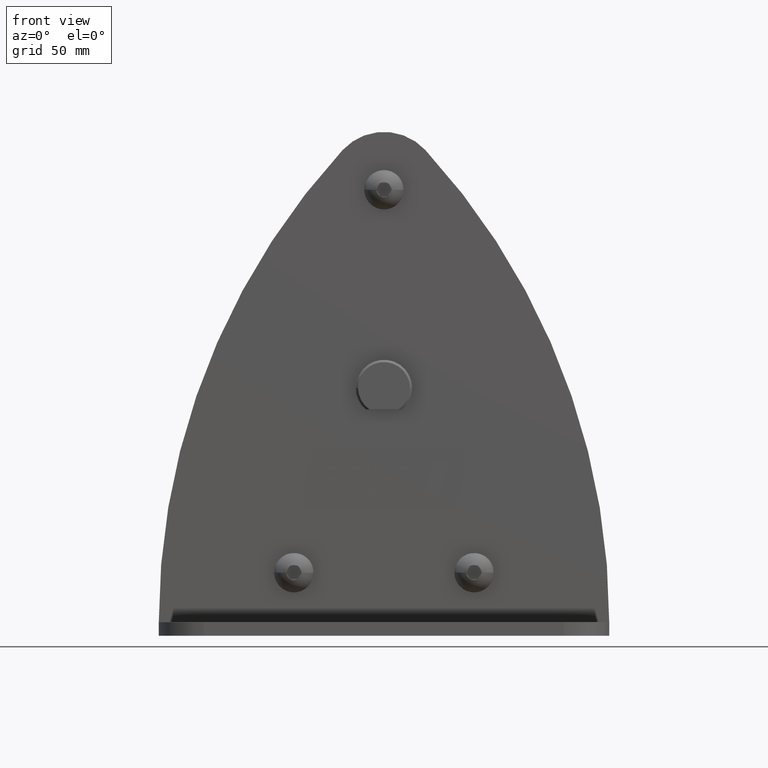
[diagram: clean part render]
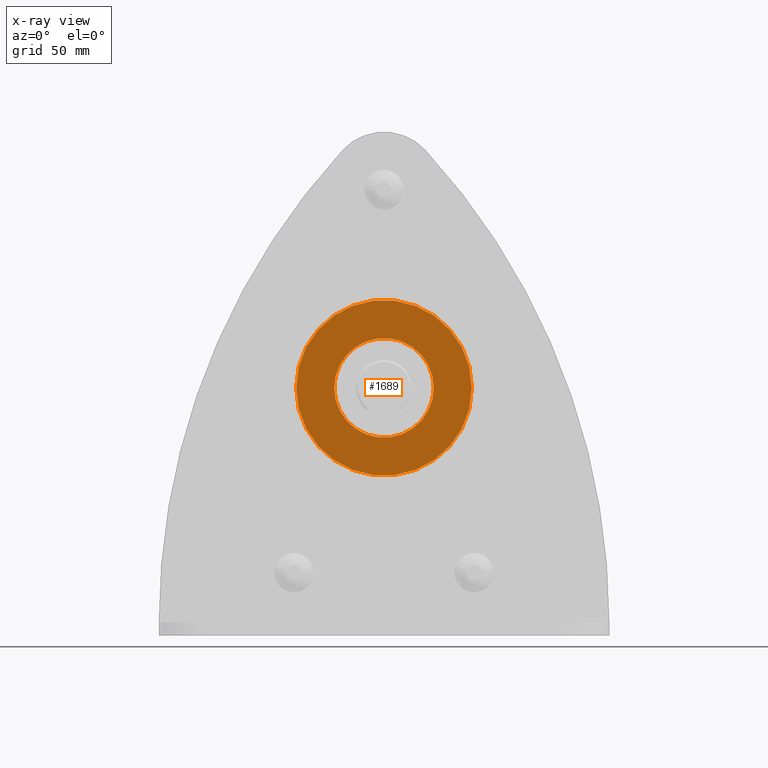
[diagram: x-ray — body ghosted, one internal face saturated and labeled with its STEP entity id]
A machine part, front view, then the same camera in x-ray: the body is ghosted and one INTERNAL B-rep face — a face not visible from any outside direction — is saturated and labeled: STEP entity #1689.
In plain terms, the highlighted planar face has unit normal (0, 1, 0).
Its self-contained STEP definition (entity closure, byte-faithful):
#1689=ADVANCED_FACE('',(#3592,#3593),#3594,.T.);
#3592=FACE_BOUND('',#5698,.T.);
#3593=FACE_OUTER_BOUND('',#5699,.T.);
#3594=PLANE('',#5700);
#5698=EDGE_LOOP('',(#11102,#11103));
#5699=EDGE_LOOP('',(#11104,#11105));
#5700=AXIS2_PLACEMENT_3D('',#11106,#11107,#11108);
#11102=ORIENTED_EDGE('',*,*,#14441,.T.);
#11103=ORIENTED_EDGE('',*,*,#12955,.T.);
#11104=ORIENTED_EDGE('',*,*,#12746,.F.);
#11105=ORIENTED_EDGE('',*,*,#14539,.F.);
#11106=CARTESIAN_POINT('',(19.5,16.0,0.0));
#11107=DIRECTION('',(0.0,1.0,0.0));
#11108=DIRECTION('',(-1.0,0.0,-0.0));
#12746=EDGE_CURVE('',#15369,#15371,#15372,.T.);
#12955=EDGE_CURVE('',#15721,#15719,#15722,.T.);
#14441=EDGE_CURVE('',#15719,#15721,#17925,.T.);
#14539=EDGE_CURVE('',#15371,#15369,#18031,.T.);
#15369=VERTEX_POINT('',#19831);
#15371=VERTEX_POINT('',#19834);
#15372=CIRCLE('',#19835,39.0);
#15719=VERTEX_POINT('',#21542);
#15721=VERTEX_POINT('',#21545);
#15722=CIRCLE('',#21546,22.1);
#17925=CIRCLE('',#25050,22.1);
#18031=CIRCLE('',#25721,39.0);
#19831=CARTESIAN_POINT('',(39.0,16.0,0.0));
#19834=CARTESIAN_POINT('',(-39.0,16.0,4.77612251667468E-015));
#19835=AXIS2_PLACEMENT_3D('',#26894,#26895,#26896);
#21542=CARTESIAN_POINT('',(22.1,16.0,0.0));
#21545=CARTESIAN_POINT('',(-22.1,16.0,-2.70646942611565E-015));
#21546=AXIS2_PLACEMENT_3D('',#27159,#27160,#27161);
#25050=AXIS2_PLACEMENT_3D('',#28816,#28817,#28818);
#25721=AXIS2_PLACEMENT_3D('',#28867,#28868,#28869);
#26894=CARTESIAN_POINT('',(0.0,16.0,0.0));
#26895=DIRECTION('',(0.0,-1.0,0.0));
#26896=DIRECTION('',(1.0,0.0,0.0));
#27159=CARTESIAN_POINT('',(0.0,16.0,0.0));
#27160=DIRECTION('',(0.0,-1.0,0.0));
#27161=DIRECTION('',(1.0,0.0,0.0));
#28816=CARTESIAN_POINT('',(0.0,16.0,0.0));
#28817=DIRECTION('',(0.0,-1.0,0.0));
#28818=DIRECTION('',(1.0,0.0,0.0));
#28867=CARTESIAN_POINT('',(0.0,16.0,0.0));
#28868=DIRECTION('',(0.0,-1.0,0.0));
#28869=DIRECTION('',(1.0,0.0,0.0));